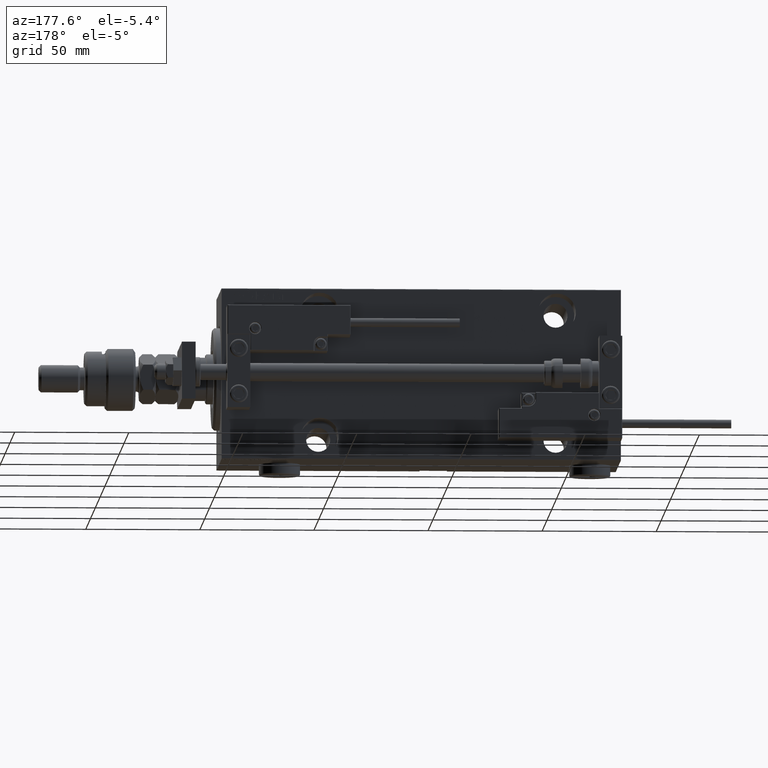
[diagram: clean part render]
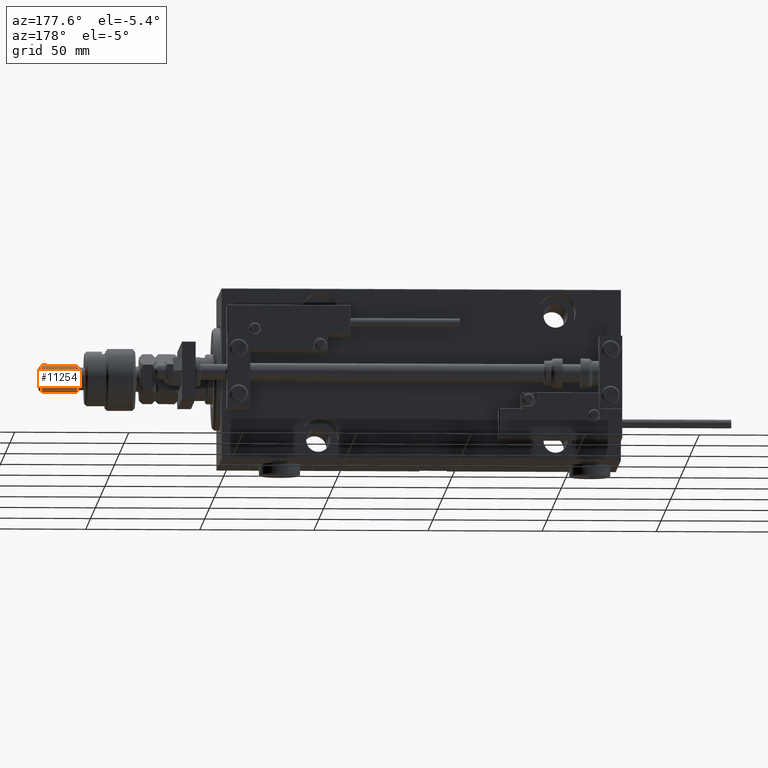
[diagram: same view with one face highlighted and labeled with its STEP entity id]
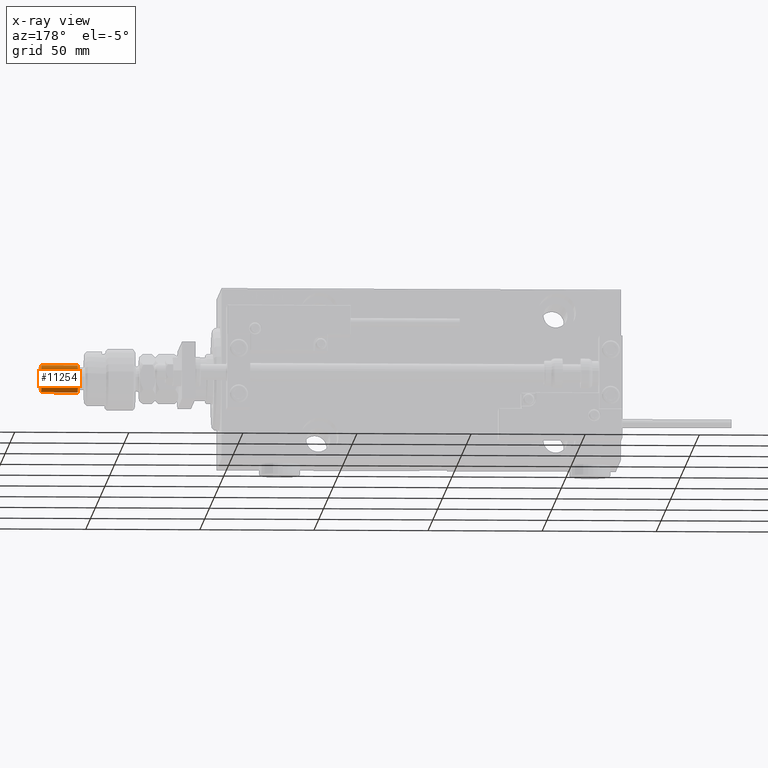
[diagram: x-ray of the same camera — body ghosted, the highlighted face saturated]
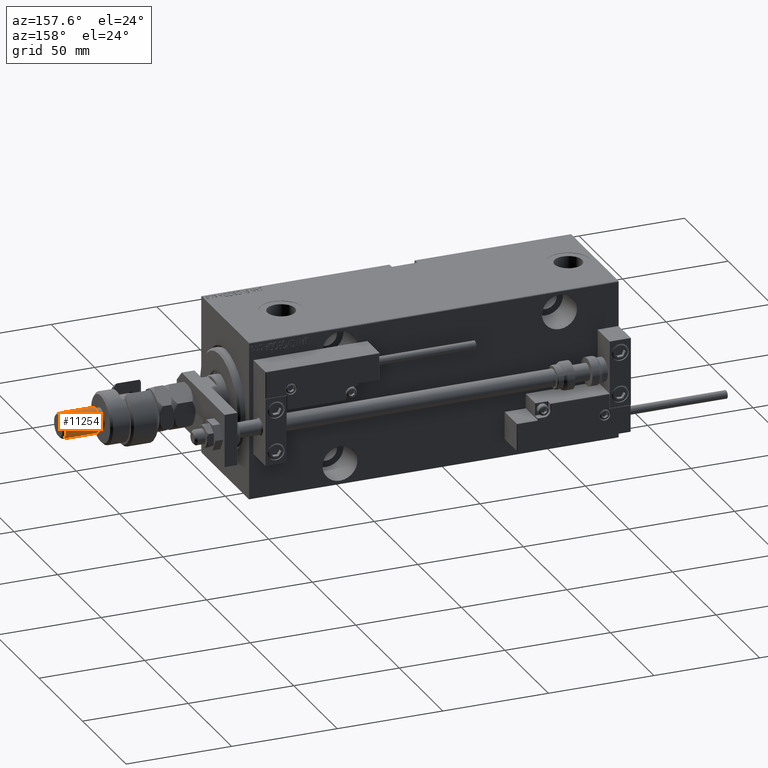
[diagram: same view with one face highlighted and labeled with its STEP entity id]
A machine part, auxiliary view. The second image highlights one B-rep face of the part: STEP entity #11254.
The next image is the same camera in x-ray: the body ghosted, the highlighted face saturated — about 0% of this face is hidden behind the body in this view.
A second angle (auxiliary view) of the same face is appended — the face is thin or edge-on in the first view.
In plain terms, the highlighted cylindrical surface (edge-blend (fillet) strip) has radius 6 mm, axis along (-1, -0, 0).
Its self-contained STEP definition (entity closure, byte-faithful):
#415 = DIRECTION ( 'NONE',  ( -0.000000000000000000, -0.000000000000000000, -1.000000000000000000 ) ) ;
#2421 = ORIENTED_EDGE ( 'NONE', *, *, #16772, .T. ) ;
#3715 = DIRECTION ( 'NONE',  ( 1.000000000000000000, 0.000000000000000000, 0.000000000000000000 ) ) ;
#4638 = VERTEX_POINT ( 'NONE', #45703 ) ;
#5359 = CYLINDRICAL_SURFACE ( 'NONE', #24245, 6.000000000000000888 ) ;
#7289 = CIRCLE ( 'NONE', #37849, 6.000000000000000888 ) ;
#8665 = DIRECTION ( 'NONE',  ( -0.000000000000000000, -0.000000000000000000, 1.000000000000000000 ) ) ;
#8929 = DIRECTION ( 'NONE',  ( 1.000000000000000000, 0.000000000000000000, 0.000000000000000000 ) ) ;
#9358 = AXIS2_PLACEMENT_3D ( 'NONE', #50755, #8665, #8929 ) ;
#10450 = EDGE_CURVE ( 'NONE', #28903, #30529, #39065, .T. ) ;
#10572 = DIRECTION ( 'NONE',  ( -0.000000000000000000, -0.000000000000000000, -1.000000000000000000 ) ) ;
#11254 = ADVANCED_FACE ( 'NONE', ( #35740 ), #5359, .T. ) ;
#12992 = VECTOR ( 'NONE', #415, 1000.000000000000000 ) ;
#13851 = DIRECTION ( 'NONE',  ( -1.000000000000000000, 0.000000000000000000, 0.000000000000000000 ) ) ;
#16290 = DIRECTION ( 'NONE',  ( 0.000000000000000000, 0.000000000000000000, -1.000000000000000000 ) ) ;
#16772 = EDGE_CURVE ( 'NONE', #27968, #28903, #40932, .T. ) ;
#17927 = ORIENTED_EDGE ( 'NONE', *, *, #52042, .T. ) ;
#18227 = CARTESIAN_POINT ( 'NONE',  ( 0.000000000000000000, 0.000000000000000000, 41.99999999999999289 ) ) ;
#20318 = CARTESIAN_POINT ( 'NONE',  ( 6.000000000000000888, 7.347880794884120722E-16, 40.99999999999997868 ) ) ;
#22804 = ORIENTED_EDGE ( 'NONE', *, *, #43672, .F. ) ;
#23265 = ORIENTED_EDGE ( 'NONE', *, *, #10450, .T. ) ;
#23608 = EDGE_LOOP ( 'NONE', ( #17927, #2421, #23265, #22804 ) ) ;
#24245 = AXIS2_PLACEMENT_3D ( 'NONE', #18227, #10572, #13851 ) ;
#25264 = CARTESIAN_POINT ( 'NONE',  ( -6.000000000000000888, 0.000000000000000000, 41.99999999999999289 ) ) ;
#27968 = VERTEX_POINT ( 'NONE', #20318 ) ;
#28903 = VERTEX_POINT ( 'NONE', #48775 ) ;
#30529 = VERTEX_POINT ( 'NONE', #53287 ) ;
#32387 = LINE ( 'NONE', #25264, #46389 ) ;
#33525 = CARTESIAN_POINT ( 'NONE',  ( 6.000000000000000888, 7.347880794884120722E-16, 41.99999999999999289 ) ) ;
#35740 = FACE_OUTER_BOUND ( 'NONE', #23608, .T. ) ;
#37849 = AXIS2_PLACEMENT_3D ( 'NONE', #41183, #16290, #3715 ) ;
#39065 = CIRCLE ( 'NONE', #9358, 6.000000000000000888 ) ;
#40932 = LINE ( 'NONE', #33525, #12992 ) ;
#41183 = CARTESIAN_POINT ( 'NONE',  ( 0.000000000000000000, 0.000000000000000000, 40.99999999999997868 ) ) ;
#43672 = EDGE_CURVE ( 'NONE', #4638, #30529, #32387, .T. ) ;
#45703 = CARTESIAN_POINT ( 'NONE',  ( -6.000000000000000888, 0.000000000000000000, 40.99999999999997868 ) ) ;
#46389 = VECTOR ( 'NONE', #49049, 1000.000000000000000 ) ;
#48775 = CARTESIAN_POINT ( 'NONE',  ( 6.000000000000000888, 7.347880794884120722E-16, 24.99999999999999645 ) ) ;
#49049 = DIRECTION ( 'NONE',  ( -0.000000000000000000, -0.000000000000000000, -1.000000000000000000 ) ) ;
#50755 = CARTESIAN_POINT ( 'NONE',  ( 0.000000000000000000, 0.000000000000000000, 24.99999999999999645 ) ) ;
#52042 = EDGE_CURVE ( 'NONE', #4638, #27968, #7289, .T. ) ;
#53287 = CARTESIAN_POINT ( 'NONE',  ( -6.000000000000000888, 0.000000000000000000, 24.99999999999999645 ) ) ;